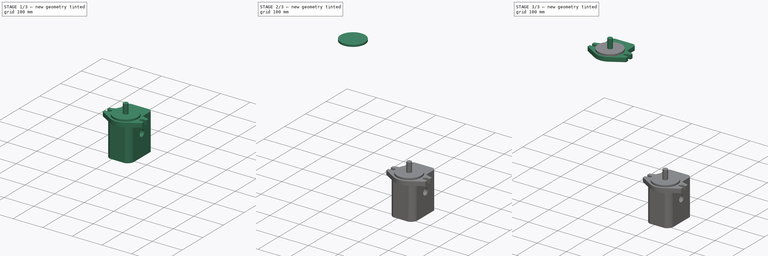
[diagram: build sequence overview — one tinted view per stage of 3, left to right]
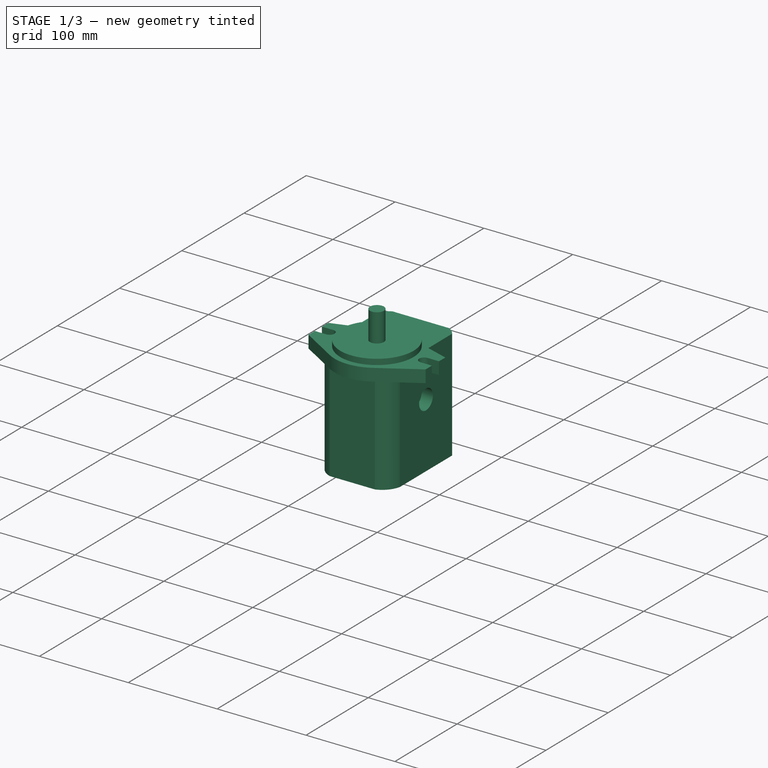
[diagram: stage 1 of 3 — iso view after this stage's code; geometry added in this stage tinted green]
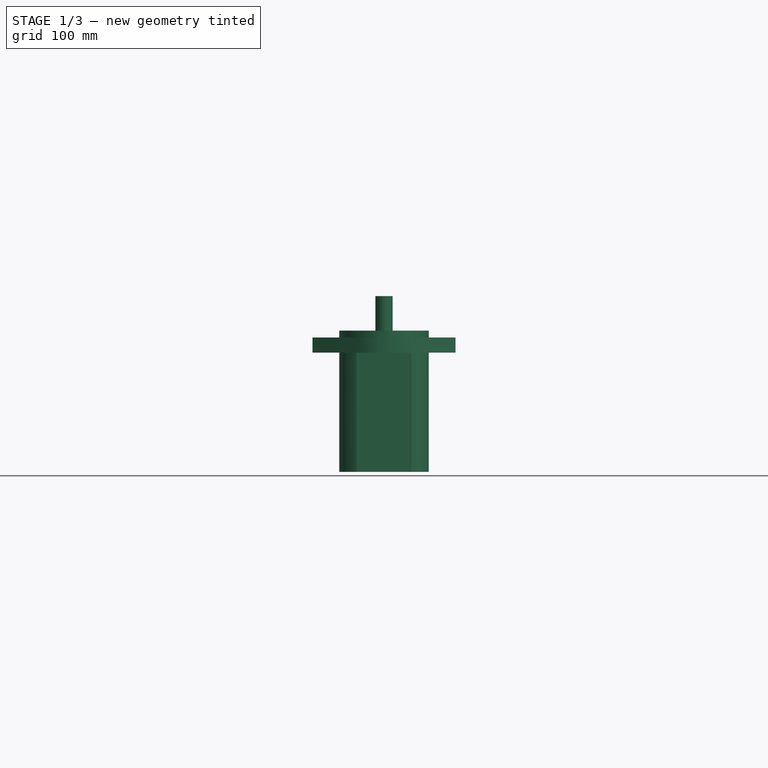
[diagram: stage 1 of 3 — front view after this stage's code; geometry added in this stage tinted green]
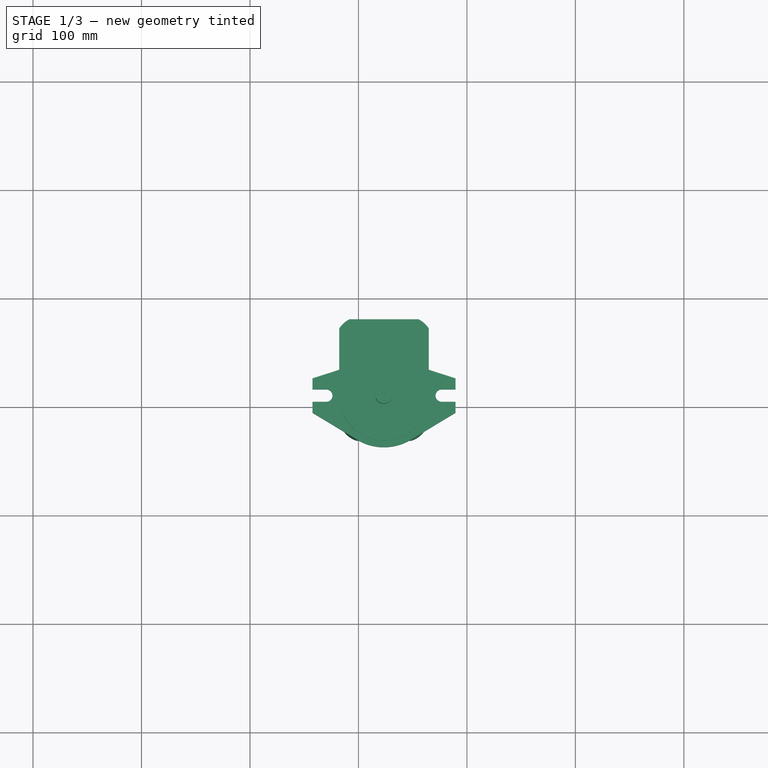
[diagram: stage 1 of 3 — top view after this stage's code; geometry added in this stage tinted green]
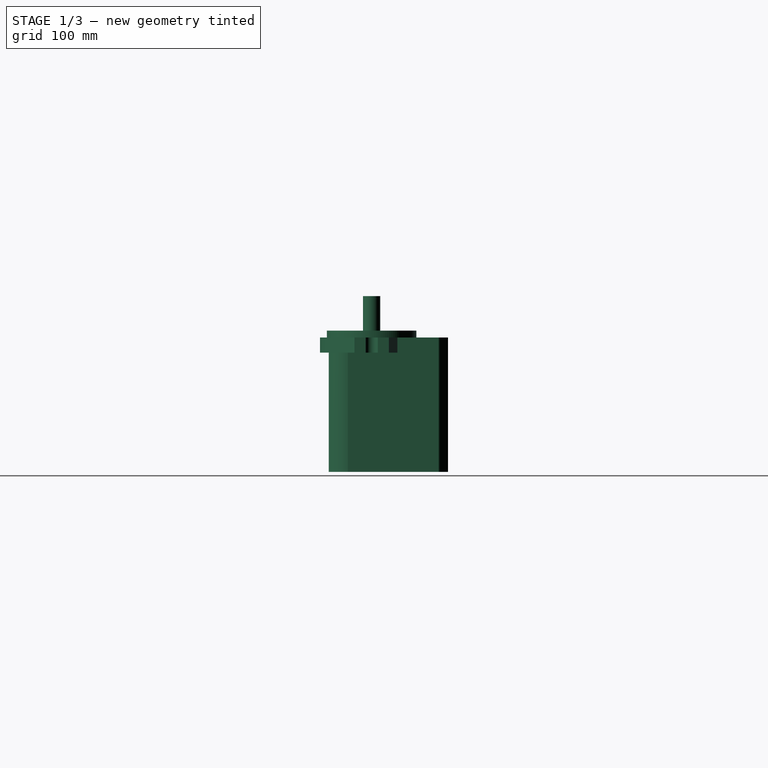
[diagram: stage 1 of 3 — right view after this stage's code; geometry added in this stage tinted green]
FCSTD DOCUMENT  (FreeCAD 0.16R6712 (Git))
Label: Hydraulic_Pump
License: All rights reserved
LicenseURL: http://en.wikipedia.org/wiki/All_rights_reserved
objects: Sketcher::SketchObject×6, PartDesign::Pad×4, PartDesign::Pocket×2, Part::Feature×1
note: 19 computed .brp shape members not serialized (recipe doc carries the construction recipe); baked Part::Feature solids carry a one-line shape summary decoded from their .brp

FEATURE [Part::Feature] Pad002001  label="front simple"
  Placement = pos=(323.547,-191.19,-246.91) rot=(0,0,1;0rad)
  shape: bbox 131.8 x 118 x 52.07 mm, 26 faces (baked)
FEATURE [Sketcher::SketchObject] Sketch003
  ExternalGeometry = -> [Pad002001]
  Placement = pos=(323.547,-191.19,-260.88) rot=(1,0,0;3.14159rad)
  Support = -> Pad002001 [Face26]
  sketch-geometry (8):
    g0: LineSegment StartX=-31.75 StartY=-70.358 StartZ=0 EndX=31.75 EndY=-70.358 EndZ=0
    g1: LineSegment StartX=-41.275 StartY=-61.8595 StartZ=0 EndX=-41.275 EndY=21.9605 EndZ=0
    g2: LineSegment StartX=41.275 StartY=-61.8595 StartZ=0 EndX=41.275 EndY=21.9605 EndZ=0
    g3: ArcOfCircle CenterX=-17.809 CenterY=16.8094 CenterZ=0 NormalX=0 NormalY=0 NormalZ=1 Radius=24.0247 StartAngle=1.89227 EndAngle=2.92551
    g4: ArcOfCircle CenterX=17.809 CenterY=16.8094 CenterZ=0 NormalX=0 NormalY=0 NormalZ=1 Radius=24.0247 StartAngle=0.216086 EndAngle=1.24932
    g5: LineSegment StartX=-25.4 StartY=39.6033 StartZ=0 EndX=25.4 EndY=39.6033 EndZ=0
    g6: ArcOfCircle CenterX=-21.0927 CenterY=-48.8264 CenterZ=0 NormalX=0 NormalY=0 NormalZ=1 Radius=24.0247 StartAngle=3.71499 EndAngle=4.25278
    g7: ArcOfCircle CenterX=21.0927 CenterY=-48.8264 CenterZ=0 NormalX=0 NormalY=0 NormalZ=1 Radius=24.0247 StartAngle=5.172 EndAngle=5.70979
  constraints (24):
    c: Vertical(g1)
    c: Vertical(g2)
    c: Equal(g1,g2)
    c: Coincident(g3,g1)
    c: Coincident(g4,g2)
    c: Coincident(g5,g3)
    c: Coincident(g5,g4)
    c: Horizontal(g5)
    c: Tangent(g3,g-3)
    c: Tangent(g4,g-4)
    c: Coincident(g6,g1)
    c: Coincident(g6,g0)
    c: Coincident(g7,g0)
    c: Coincident(g7,g2)
    c: Radius(g6) = 24.0247
    c: Coincident(g0,g-5)
    c: Coincident(g1,g-5)
    c: Coincident(g2,g-6)
    c: Coincident(g0,g-6)
    c: Equal(g3,g4)
    c: Equal(g4,g6)
    c: Equal(g6,g7)
    c: DistanceX(g5,g5) = 50.8
    c: DistanceY(g1,g1) = 83.82
FEATURE [PartDesign::Pad] Pad002002
  Length = 109.855
  Length2 = 100
  Placement = pos=(323.547,-191.19,-246.91) rot=(0,0,1;0rad)
  Sketch = -> Sketch003
  Type = 0
FEATURE [Sketcher::SketchObject] Sketch004  label="7/8" outlet"
  ExternalGeometry = -> [Pad002002]
  Placement = pos=(364.822,-191.19,-246.91) rot=(0.57735,0.57735,0.57735;2.0944rad)
  Support = -> Pad002002 [Face34]
  sketch-geometry (6):
    g0: LineSegment [constr] StartX=-21.9605 StartY=-123.825 StartZ=0 EndX=-21.9605 EndY=0 EndZ=0
    g1: LineSegment [constr] StartX=19.9495 StartY=0 StartZ=0 EndX=19.9495 EndY=-50.8 EndZ=0
    g2: LineSegment [constr] StartX=61.8595 StartY=-50.8 StartZ=0 EndX=19.9495 EndY=-50.8 EndZ=0
    g3: LineSegment [constr] StartX=19.9495 StartY=-50.8 StartZ=0 EndX=-21.9605 EndY=-50.8 EndZ=0
    g4: LineSegment [constr] StartX=61.8595 StartY=-123.825 StartZ=0 EndX=61.8595 EndY=0 EndZ=0
    g5: Circle CenterX=19.9495 CenterY=-50.8 CenterZ=0 NormalX=0 NormalY=0 NormalZ=1 Radius=11.1125
  constraints (18):
    c: Coincident(g0,g-3)
    c: PointOnObject(g0,g-1)
    c: Vertical(g0)
    c: PointOnObject(g1,g-1)
    c: Vertical(g1)
    c: Coincident(g2,g1)
    c: Horizontal(g2)
    c: Coincident(g3,g1)
    c: PointOnObject(g3,g0)
    c: Horizontal(g3)
    c: Equal(g3,g2)
    c: DistanceY(g1,g1) = 50.8
    c: Coincident(g4,g-3)
    c: PointOnObject(g4,g-1)
    c: Vertical(g4)
    c: PointOnObject(g2,g4)
    c: Coincident(g5,g1)
    c: Radius(g5) = 11.1125
FEATURE [PartDesign::Pocket] Pocket  label="outlet"
  Length = 12.7
  Placement = pos=(323.547,-191.19,-246.91) rot=(0,0,1;0rad)
  Sketch = -> Sketch004
  Type = 0
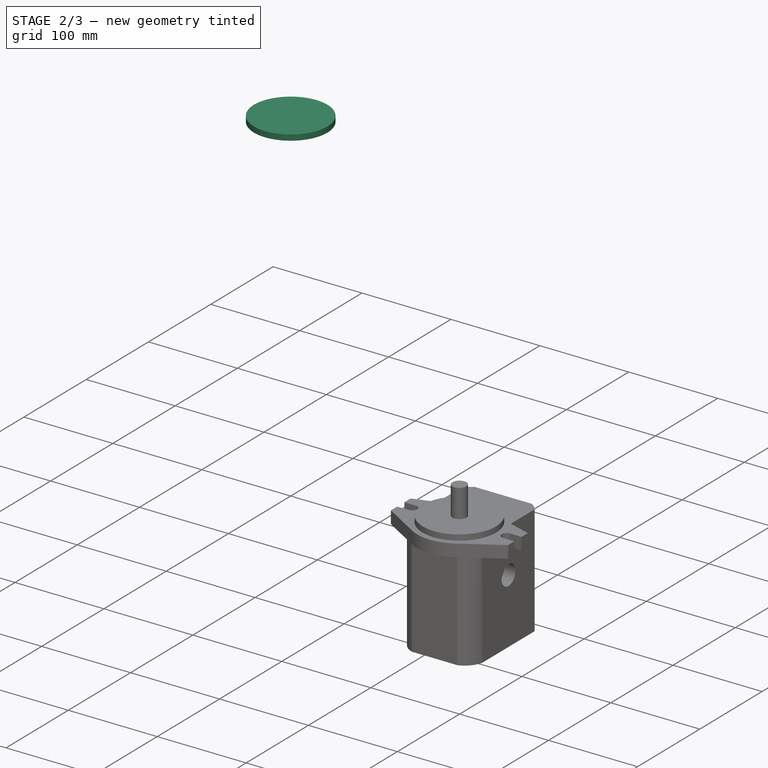
[diagram: stage 2 of 3 — iso view after this stage's code; geometry added in this stage tinted green]
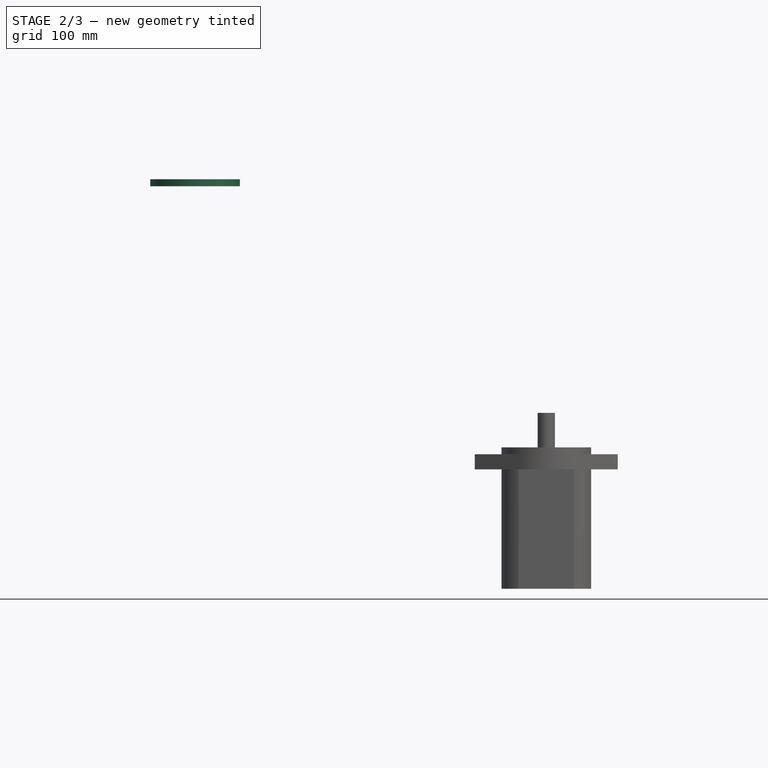
[diagram: stage 2 of 3 — front view after this stage's code; geometry added in this stage tinted green]
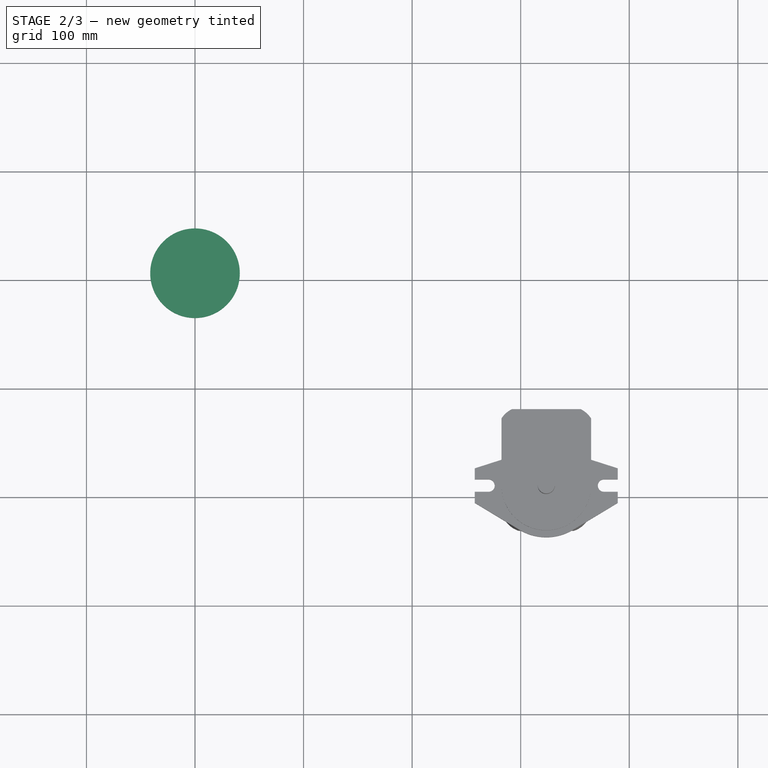
[diagram: stage 2 of 3 — top view after this stage's code; geometry added in this stage tinted green]
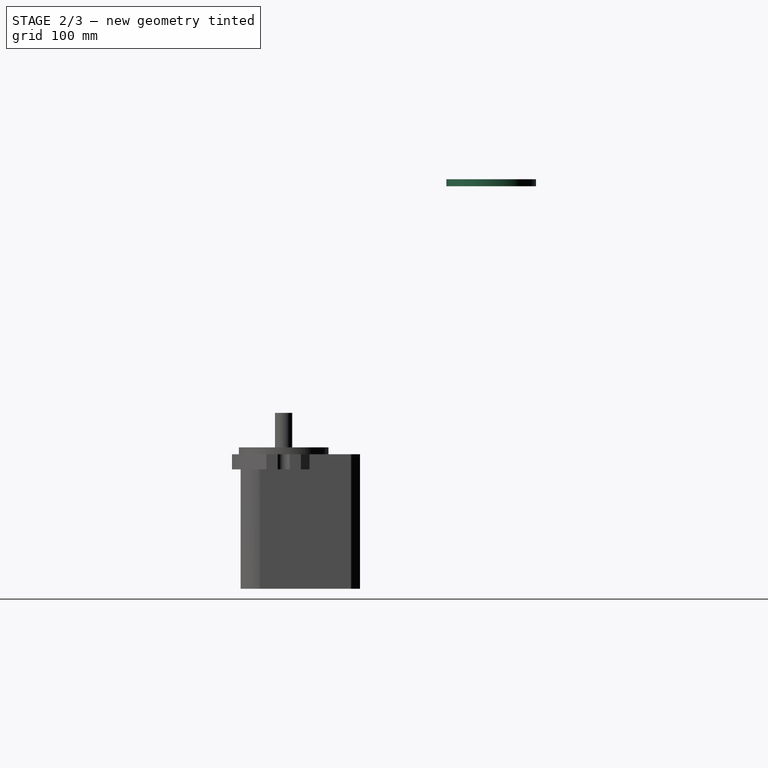
[diagram: stage 2 of 3 — right view after this stage's code; geometry added in this stage tinted green]
FEATURE [Sketcher::SketchObject] Sketch  label="Mount Face"
  sketch-geometry (1):
    g0: Circle CenterX=0 CenterY=0 CenterZ=0 NormalX=0 NormalY=0 NormalZ=1 Radius=41.275
  constraints (2):
    c: Coincident(g0,g-1)
    c: Radius(g0) = 41.275
FEATURE [PartDesign::Pad] Pad  label="Mounting Face"
  Length = 6.35
  Length2 = 100
  Sketch = -> Sketch
  Type = 0
FEATURE [Sketcher::SketchObject] Sketch005  label="1-1/16" inlet"
  ExternalGeometry = -> [Pocket]
  Placement = pos=(282.272,-191.19,-246.91) rot=(0.57735,-0.57735,-0.57735;2.0944rad)
  Support = -> Pocket [Face6]
  sketch-geometry (6):
    g0: LineSegment [constr] StartX=-61.8595 StartY=-123.825 StartZ=0 EndX=-61.8595 EndY=0 EndZ=0
    g1: LineSegment [constr] StartX=21.9605 StartY=-123.825 StartZ=0 EndX=21.9605 EndY=0 EndZ=0
    g2: LineSegment [constr] StartX=-61.8595 StartY=-76.2 StartZ=0 EndX=-19.9495 EndY=-76.2 EndZ=0
    g3: LineSegment [constr] StartX=-19.9495 StartY=-76.2 StartZ=0 EndX=21.9605 EndY=-76.2 EndZ=0
    g4: LineSegment [constr] StartX=-19.9495 StartY=0 StartZ=0 EndX=-19.9495 EndY=-76.2 EndZ=0
    g5: Circle CenterX=-19.9495 CenterY=-76.2 CenterZ=0 NormalX=0 NormalY=0 NormalZ=1 Radius=13.4938
  constraints (19):
    c: Coincident(g0,g-3)
    c: PointOnObject(g0,g-1)
    c: Vertical(g0)
    c: Coincident(g1,g-3)
    c: PointOnObject(g1,g-1)
    c: Vertical(g1)
    c: PointOnObject(g2,g0)
    c: Horizontal(g2)
    c: Coincident(g3,g2)
    c: PointOnObject(g3,g1)
    c: Horizontal(g3)
    c: PointOnObject(g4,g-1)
    c: PointOnObject(g4,g2)
    c: Vertical(g4)
    c: Coincident(g4,g2)
    c: Equal(g3,g2)
    c: DistanceY(g4,g4) = 76.2
    c: Coincident(g5,g2)
    c: Radius(g5) = 13.4938
FEATURE [PartDesign::Pocket] Pocket001  label="inlet"
  Length = 12.7
  Placement = pos=(323.547,-191.19,-246.91) rot=(0,0,1;0rad)
  Sketch = -> Sketch005
  Type = 0
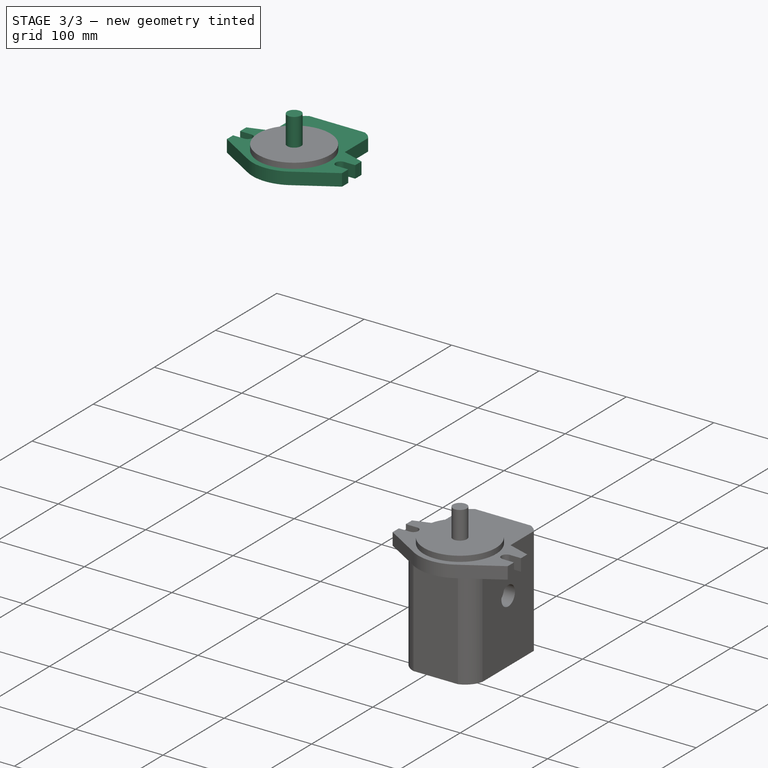
[diagram: stage 3 of 3 — iso view after this stage's code; geometry added in this stage tinted green]
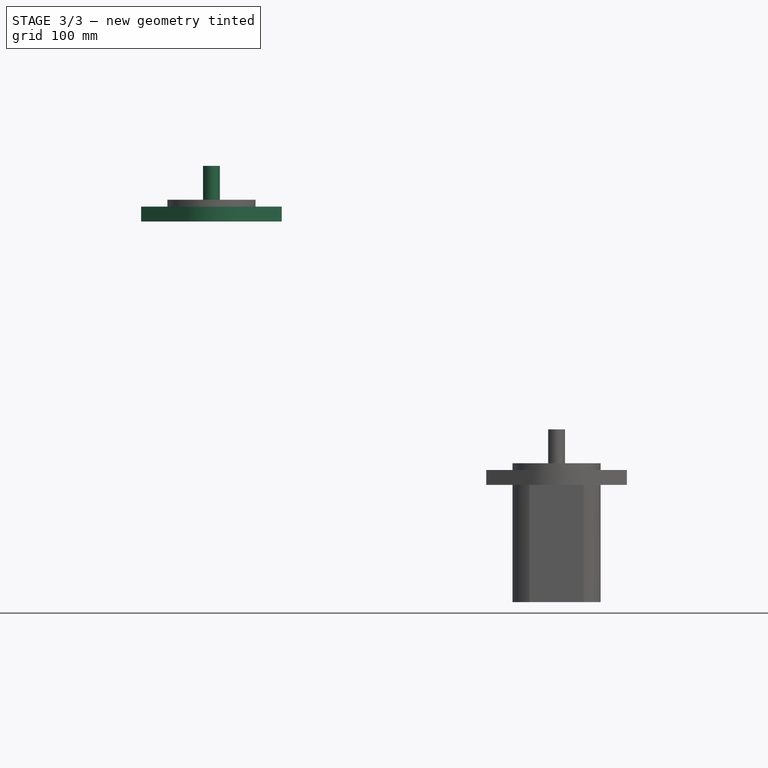
[diagram: stage 3 of 3 — front view after this stage's code; geometry added in this stage tinted green]
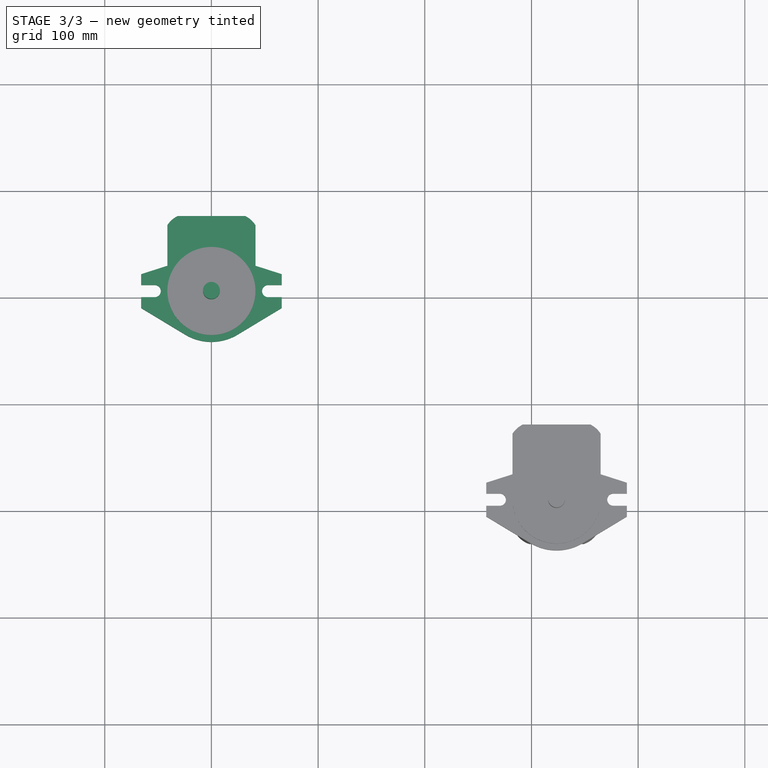
[diagram: stage 3 of 3 — top view after this stage's code; geometry added in this stage tinted green]
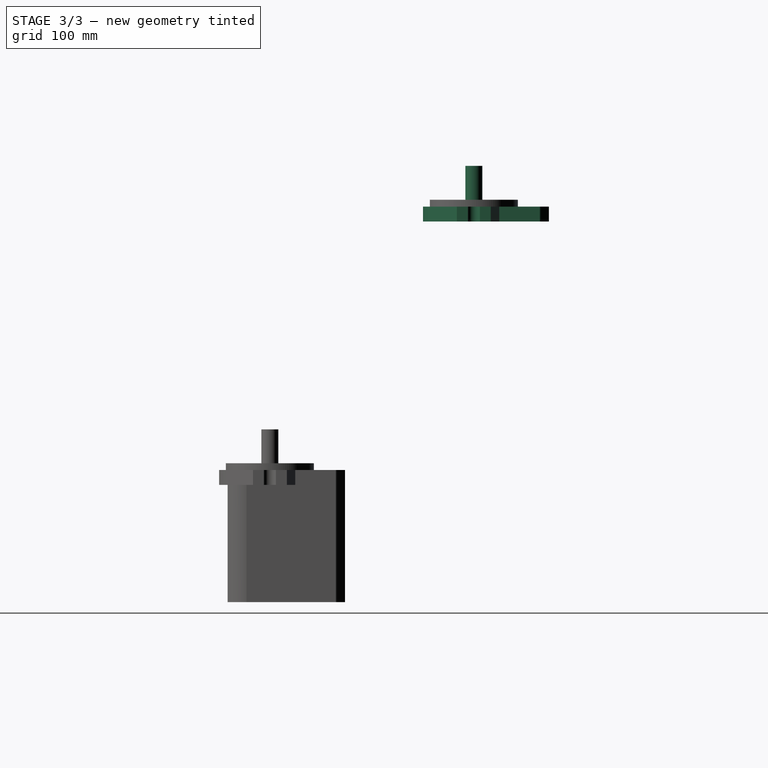
[diagram: stage 3 of 3 — right view after this stage's code; geometry added in this stage tinted green]
FEATURE [Sketcher::SketchObject] Sketch001  label="Shaft"
  Placement = pos=(0,0,6.35) rot=(0,0,1;0rad)
  Support = -> Pad [Face3]
  sketch-geometry (1):
    g0: Circle CenterX=0 CenterY=0 CenterZ=0 NormalX=0 NormalY=0 NormalZ=1 Radius=7.9375
  constraints (2):
    c: Coincident(g0,g-1)
    c: Radius(g0) = 7.9375
FEATURE [PartDesign::Pad] Pad001  label="5/8 9 Spline Shaft"
  Length = 31.75
  Length2 = 100
  Sketch = -> Sketch001
  Type = 0
FEATURE [Sketcher::SketchObject] Sketch002
  Placement = pos=(0,0,0) rot=(1,0,0;3.14159rad)
  Support = -> Pad001 [Face2]
  sketch-geometry (22):
    g0: LineSegment StartX=-41.275 StartY=-23.7595 StartZ=0 EndX=-41.275 EndY=-61.8595 EndZ=0
    g1: LineSegment StartX=41.275 StartY=-23.7595 StartZ=0 EndX=41.275 EndY=-61.8595 EndZ=0
    g2: LineSegment StartX=-31.75 StartY=-70.358 StartZ=0 EndX=31.75 EndY=-70.358 EndZ=0
    g3: ArcOfCircle CenterX=21.0927 CenterY=-48.8264 CenterZ=0 NormalX=0 NormalY=0 NormalZ=1 Radius=24.0247 StartAngle=5.172 EndAngle=5.70979
    g4: ArcOfCircle CenterX=-21.0927 CenterY=-48.8264 CenterZ=0 NormalX=0 NormalY=0 NormalZ=1 Radius=24.0247 StartAngle=3.71499 EndAngle=4.25278
    g5: LineSegment StartX=65.8876 StartY=-15.875 StartZ=0 EndX=65.8876 EndY=-5.715 EndZ=0
    g6: LineSegment StartX=65.8876 StartY=5.715 StartZ=0 EndX=65.8876 EndY=15.875 EndZ=0
    g7: LineSegment StartX=-65.8876 StartY=-15.875 StartZ=0 EndX=-65.8876 EndY=-5.715 EndZ=0
    g8: LineSegment StartX=-65.8876 StartY=5.715 StartZ=0 EndX=-65.8876 EndY=15.875 EndZ=0
    g9: LineSegment StartX=-41.275 StartY=-23.7595 StartZ=0 EndX=-65.8876 EndY=-15.875 EndZ=0
    g10: LineSegment StartX=41.275 StartY=-23.7595 StartZ=0 EndX=65.8876 EndY=-15.875 EndZ=0
    g11: LineSegment StartX=65.8876 StartY=15.875 StartZ=0 EndX=25.4 EndY=40.2862 EndZ=0
    g12: ArcOfCircle CenterX=-53.1876 CenterY=0 CenterZ=0 NormalX=0 NormalY=0 NormalZ=1 Radius=5.715 StartAngle=4.71239 EndAngle=7.85398
    g13: LineSegment StartX=-65.8876 StartY=-5.715 StartZ=0 EndX=-53.1876 EndY=-5.715 EndZ=0
    g14: LineSegment StartX=-65.8876 StartY=5.715 StartZ=0 EndX=-53.1876 EndY=5.715 EndZ=0
    g15: ArcOfCircle CenterX=53.1876 CenterY=0 CenterZ=0 NormalX=0 NormalY=0 NormalZ=1 Radius=5.715 StartAngle=1.5708 EndAngle=4.71239
    g16: LineSegment StartX=53.1876 StartY=-5.715 StartZ=0 EndX=65.8876 EndY=-5.715 EndZ=0
    g17: LineSegment StartX=53.1876 StartY=5.715 StartZ=0 EndX=65.8876 EndY=5.715 EndZ=0
    g18: Circle [constr] CenterX=0 CenterY=0 CenterZ=0 NormalX=0 NormalY=0 NormalZ=1 Radius=47.625
    g19: ArcOfCircle CenterX=0 CenterY=0 CenterZ=0 NormalX=0 NormalY=0 NormalZ=1 Radius=47.625 StartAngle=1.00826 EndAngle=2.13333
    g20: Circle [constr] CenterX=0 CenterY=0 CenterZ=0 NormalX=0 NormalY=0 NormalZ=1 Radius=53.1876
    g21: LineSegment StartX=-65.8876 StartY=15.875 StartZ=0 EndX=-25.4 EndY=40.2862 EndZ=0
  constraints (66):
    c: Vertical(g0)
    c: Vertical(g1)
    c: Horizontal(g2)
    c: Coincident(g3,g1)
    c: Coincident(g3,g2)
    c: Coincident(g4,g2)
    c: Coincident(g4,g0)
    c: Vertical(g5)
    c: Vertical(g6)
    c: Vertical(g7)
    c: Coincident(g9,g0)
    c: Coincident(g9,g7)
    c: Coincident(g10,g1)
    c: Coincident(g10,g5)
    c: Coincident(g11,g6)
    c: Tangent(g13,g12) = -1.5708
    c: Tangent(g14,g12) = 1.5708
    c: Horizontal(g13)
    c: Coincident(g13,g7)
    c: Coincident(g14,g8)
    c: Tangent(g15,g17) = 1.5708
    c: Horizontal(g16)
    c: Coincident(g16,g5)
    c: Coincident(g17,g6)
    c: Radius(g15) = 5.715
    c: Equal(g12,g15)
    c: DistanceX(g12,g15) = 106.375
    c: Equal(g7,g5)
    c: Equal(g5,g6)
    c: Equal(g6,g8)
    c: Vertical(g8)
    c: Coincident(g18,g-1)
    c: Radius(g18) = 47.625
    c: Coincident(g19,g-1)
    c: Coincident(g11,g19)
    c: PointOnObject(g11,g18)
    c: DistanceY(g5,g6) = 11.43
    c: DistanceY(g2,g12) = 70.358
    c: Horizontal(g14)
    c: Coincident(g20,g-1)
    c: Radius(g20) = 53.1876
    c: PointOnObject(g1,g18)
    c: PointOnObject(g0,g18)
    c: DistanceX(g0,g1) = 82.55
    c: Coincident(g21,g8)
    c: Coincident(g21,g19)
    c: Equal(g21,g11)
    c: Coincident(g16,g15)
    c: PointOnObject(g15,g20)
    c: PointOnObject(g15,g-1)
    c: PointOnObject(g12,g-1)
    c: Equal(g9,g10)
    c: Equal(g0,g1)
    c: DistanceX(g7,g12) = 12.7
    c: Equal(g17,g16)
    c: Equal(g16,g14)
    c: Equal(g14,g13)
    c: DistanceY(g6,g6) = 10.16
    c: Symmetric(g19,g11,g-2)
    c: DistanceY(g0,g0) = 38.1
    c: PointOnObject(g4,g20)
    c: PointOnObject(g3,g20)
    c: Symmetric(g4,g3,g-2)
    c: DistanceX(g2,g2) = 63.5
    c: Symmetric(g12,g15,g-2)
    c: DistanceX(g11) = 25.4
FEATURE [PartDesign::Pad] Pad002
  Length = 13.97
  Length2 = 100
  Sketch = -> Sketch002
  Type = 0
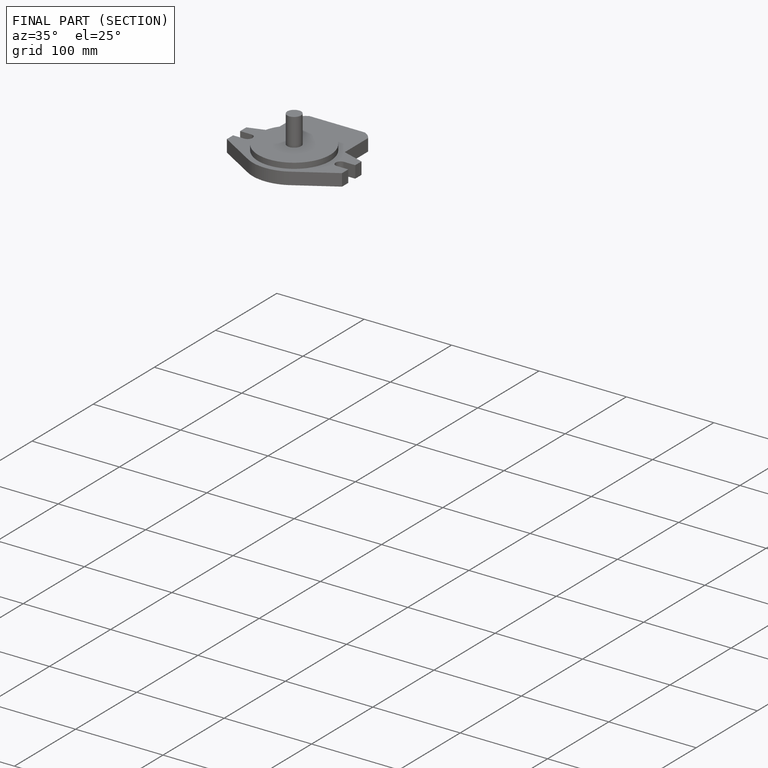
[diagram: finished part — half-section view (interior)]
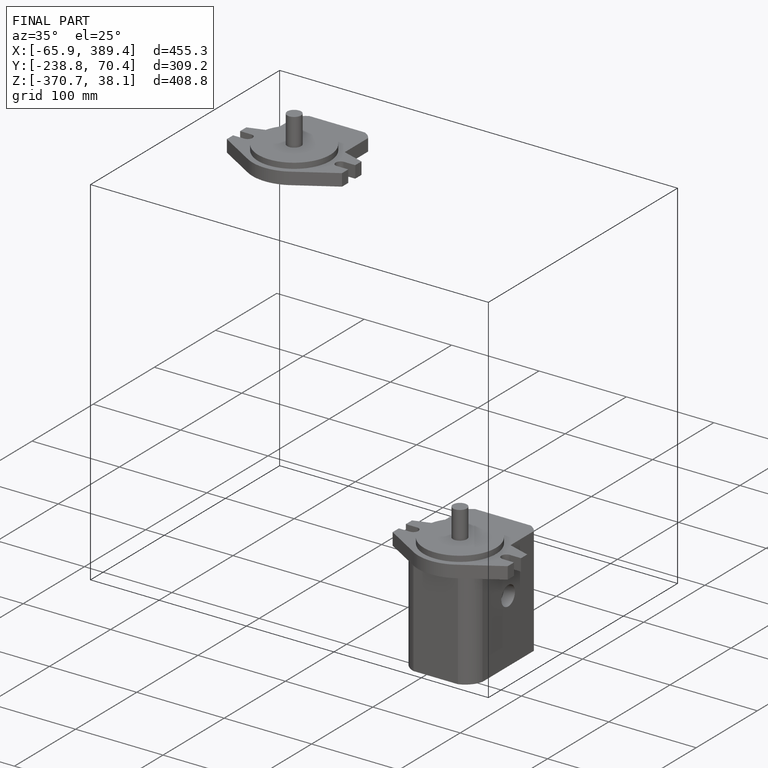
[diagram: finished part — iso view with bounding-box wireframe]
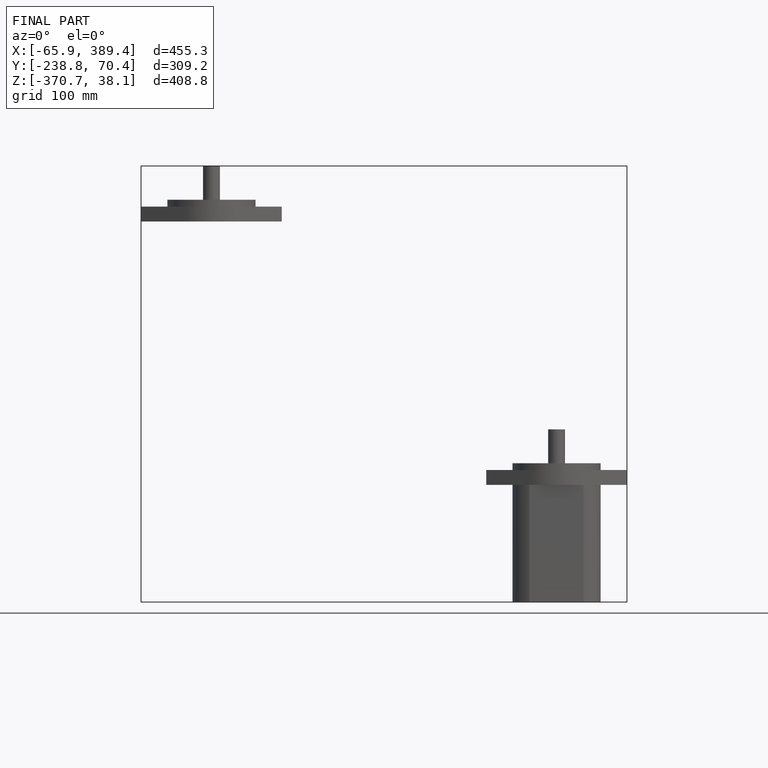
[diagram: finished part — front view with bounding-box wireframe]
